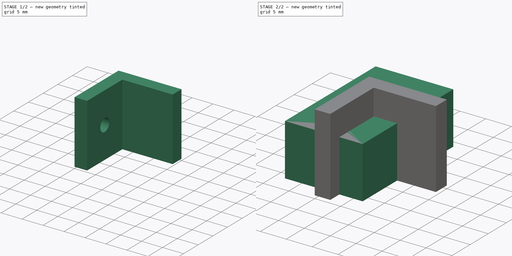
[diagram: build sequence overview — one tinted view per stage of 2, left to right]
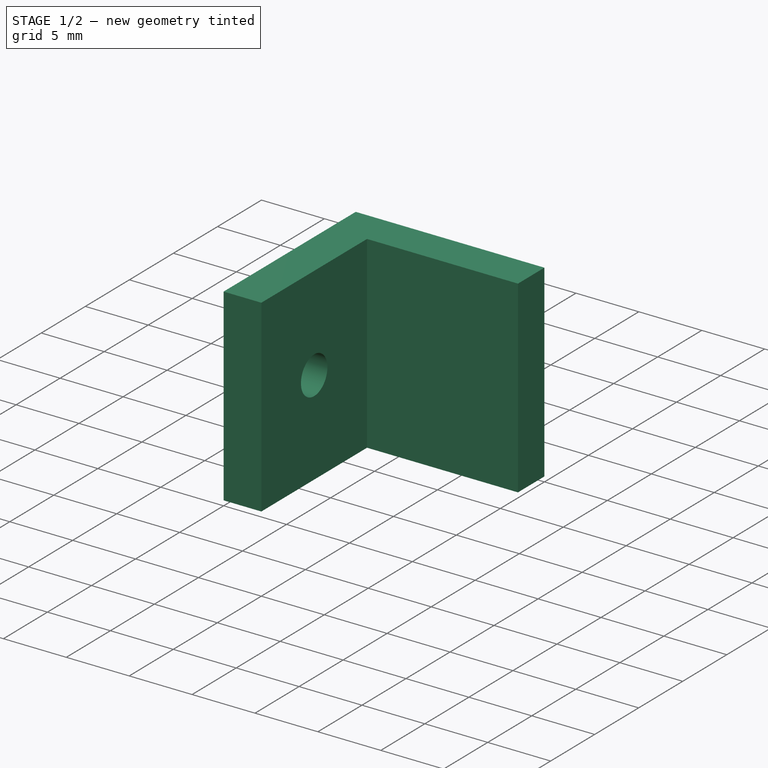
[diagram: stage 1 of 2 — iso view after this stage's code; geometry added in this stage tinted green]
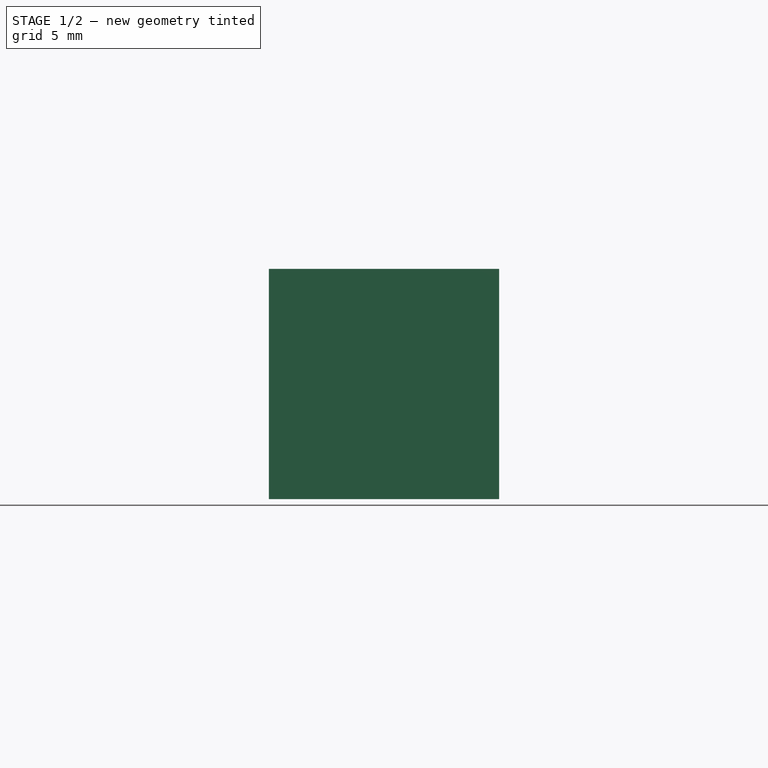
[diagram: stage 1 of 2 — front view after this stage's code; geometry added in this stage tinted green]
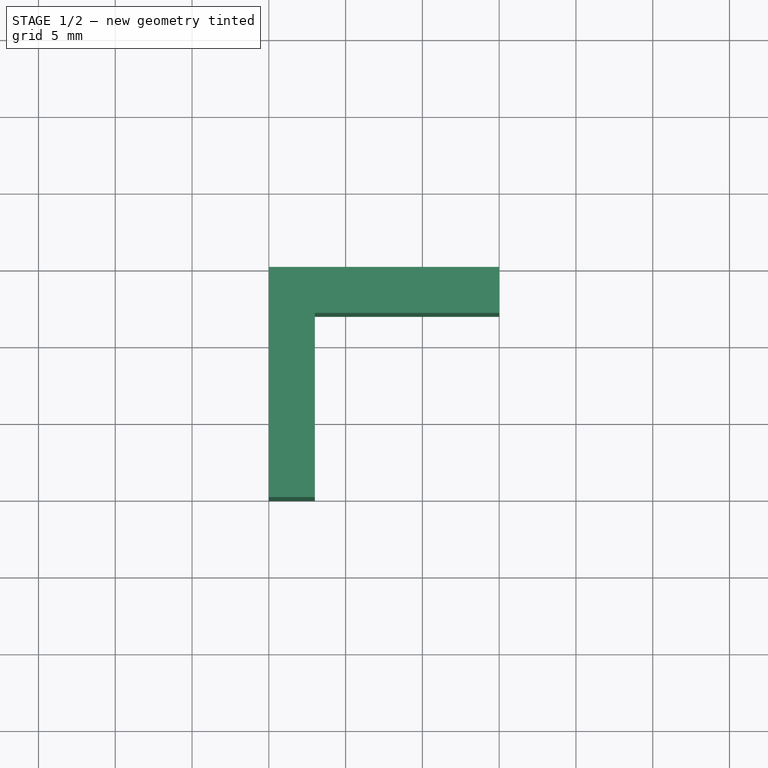
[diagram: stage 1 of 2 — top view after this stage's code; geometry added in this stage tinted green]
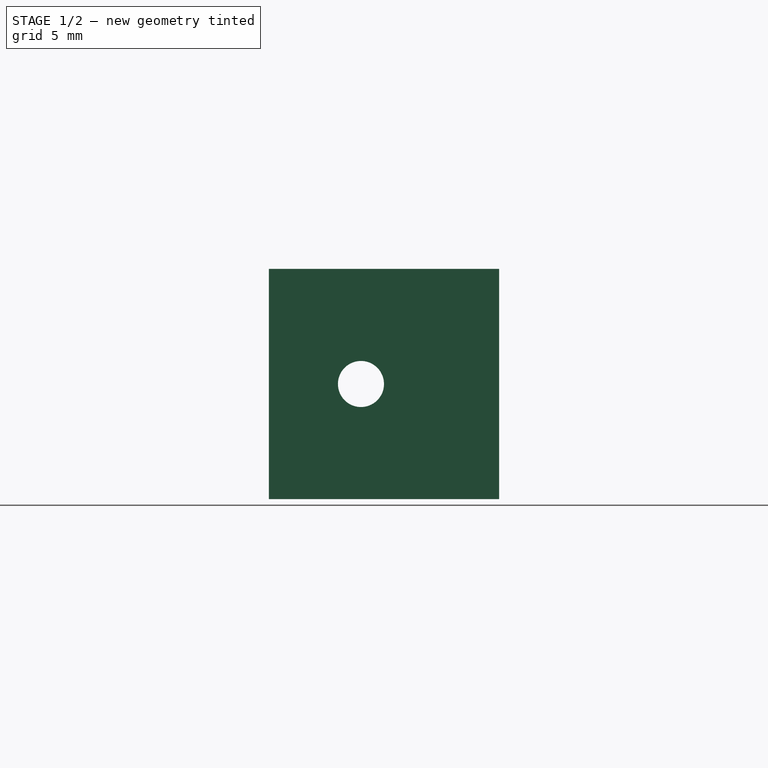
[diagram: stage 1 of 2 — right view after this stage's code; geometry added in this stage tinted green]
FCSTD DOCUMENT  (FreeCAD 2024.2R37179 (Git))
Label: Blok
License: All rights reserved
LicenseURL: https://en.wikipedia.org/wiki/All_rights_reserved
objects: Sketcher::SketchObject×4, PartDesign::Pad×2, PartDesign::Body×2, PartDesign::Pocket×1
note: 12 computed .brp shape members not serialized (recipe doc carries the construction recipe); baked Part::Feature solids carry a one-line shape summary decoded from their .brp

FEATURE [PartDesign::Body] Body
  Group = -> [Sketch,Pad]
  Origin = -> Origin
  Tip = -> Pad
FEATURE [Sketcher::SketchObject] Sketch001
  AttachmentSupport = -> [XY_Plane001]
  FullyConstrained = true
  MapMode = 5
  sketch-geometry (6):
    g0: LineSegment StartX=0 StartY=0 StartZ=0 EndX=0 EndY=-15 EndZ=0
    g1: LineSegment StartX=0 StartY=-15 StartZ=0 EndX=3 EndY=-15 EndZ=0
    g2: LineSegment StartX=3 StartY=-15 StartZ=0 EndX=3 EndY=-3 EndZ=0
    g3: LineSegment StartX=3 StartY=-3 StartZ=0 EndX=15 EndY=-3 EndZ=0
    g4: LineSegment StartX=15 StartY=-3 StartZ=0 EndX=15 EndY=0 EndZ=0
    g5: LineSegment StartX=15 StartY=0 StartZ=0 EndX=0 EndY=0 EndZ=0
  constraints (17):
    c: Coincident(g-1,g0)
    c: PointOnObject(g0,g-2)
    c: Coincident(g0,g1)
    c: Coincident(g1,g2)
    c: Coincident(g2,g3)
    c: Horizontal(g3)
    c: Coincident(g3,g4)
    c: PointOnObject(g4,g-1)
    c: Coincident(g4,g5)
    c: Coincident(g5,g0)
    c: Vertical(g2)
    c: Horizontal(g1)
    c: Vertical(g4)
    c: DistanceX(g5,g5) = 15
    c: DistanceY(g0,g0) = 15
    c: DistanceX(g1,g1) = 3
    c: DistanceY(g4,g4) = 3
FEATURE [PartDesign::Pad] Pad001
  Direction = (0,0,1)
  Length = 15
  Length2 = 10
  Profile = -> Sketch001
  ReferenceAxis = -> Sketch001 [N_Axis]
  Refine = true
  Suppressed = false
  Type = 0
FEATURE [Sketcher::SketchObject] Sketch002
  AttachmentSupport = -> [Pad001]
  FullyConstrained = true
  MapMode = 5
  Placement = pos=(3,0,0) rot=(0.57735,0.57735,0.57735;2.0944rad)
FEATURE [Sketcher::SketchObject] Sketch003
  AttachmentSupport = -> [Pad001]
  ExternalGeometry = -> [Pad001]
  FullyConstrained = true
  MapMode = 5
  Placement = pos=(3,0,0) rot=(0.57735,0.57735,0.57735;2.0944rad)
  sketch-geometry (1):
    g0: Circle CenterX=-9 CenterY=7.5 CenterZ=0 NormalX=0 NormalY=0 NormalZ=1 AngleXU=0 Radius=1.5
  constraints (2):
    c: Diameter(g0) = 3
    c: Symmetric(g-4,g-3,g0)
FEATURE [PartDesign::Pocket] Pocket
  BaseFeature = -> Pad001
  Direction = (-1,0,0)
  Length = 5
  Length2 = 5
  Profile = -> Sketch003
  ReferenceAxis = -> Sketch003 [N_Axis]
  Refine = true
  Suppressed = false
  Type = 1
FEATURE [PartDesign::Body] Body001
  Group = -> [Sketch001,Pad001,Sketch002,Sketch003,Pocket]
  Origin = -> Origin001
  Tip = -> Pocket
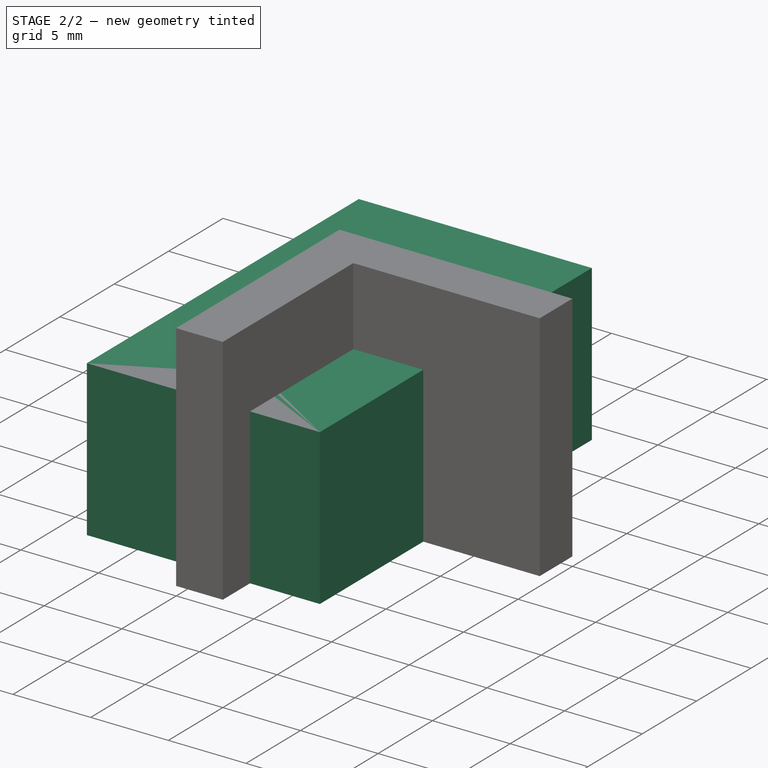
[diagram: stage 2 of 2 — iso view after this stage's code; geometry added in this stage tinted green]
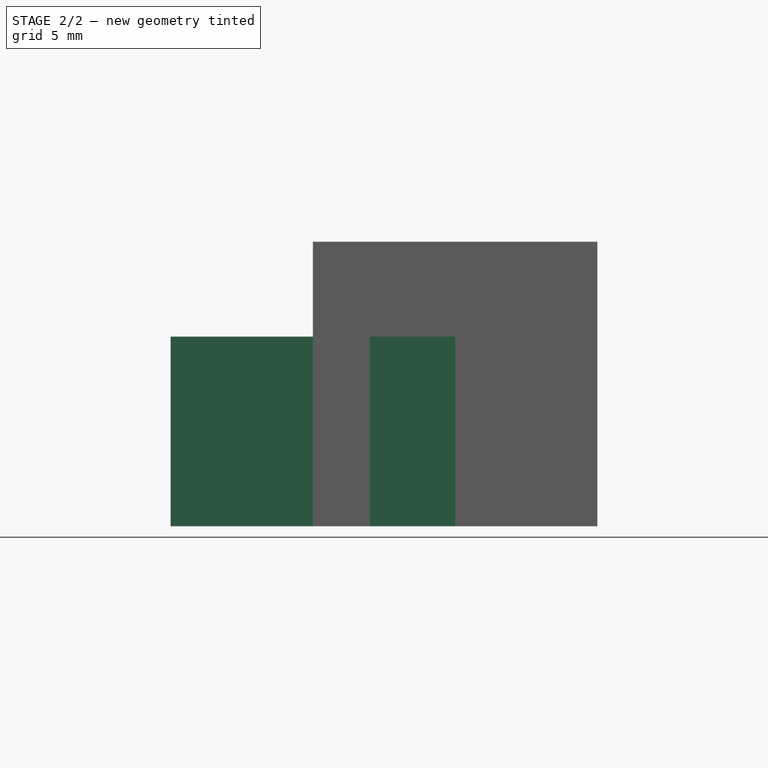
[diagram: stage 2 of 2 — front view after this stage's code; geometry added in this stage tinted green]
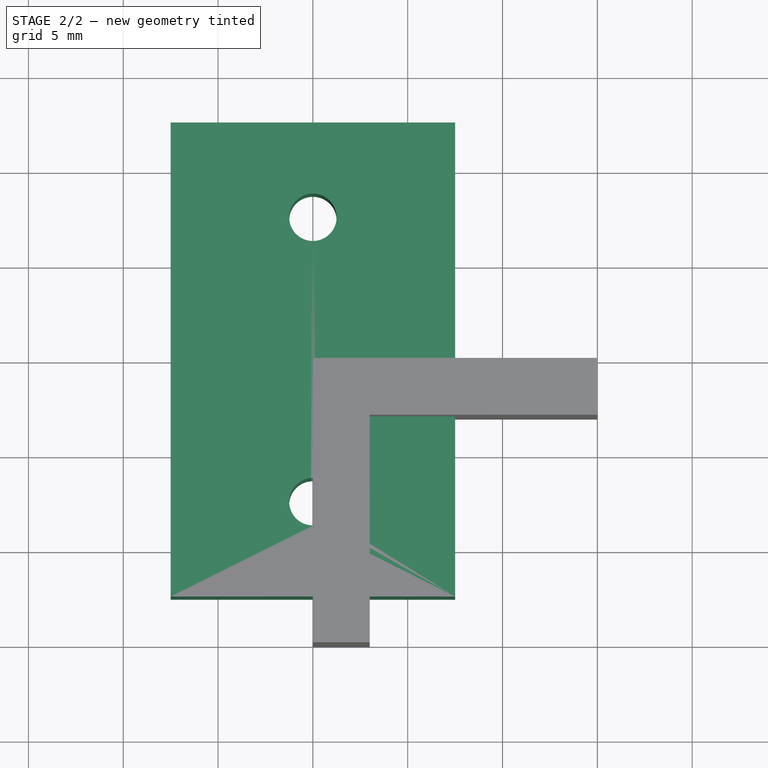
[diagram: stage 2 of 2 — top view after this stage's code; geometry added in this stage tinted green]
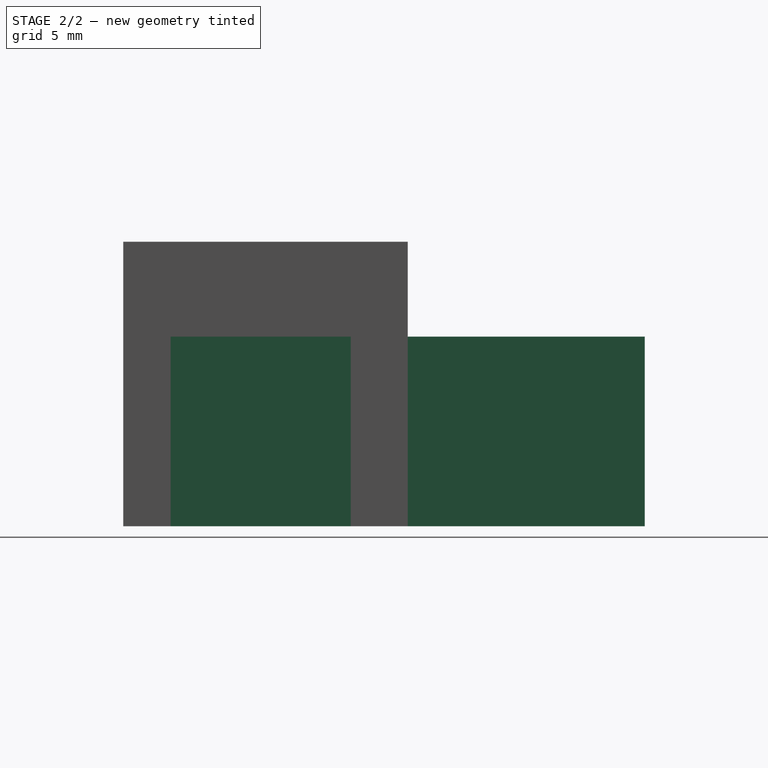
[diagram: stage 2 of 2 — right view after this stage's code; geometry added in this stage tinted green]
FEATURE [Sketcher::SketchObject] Sketch
  AttachmentSupport = -> [XY_Plane]
  FullyConstrained = true
  MapMode = 5
  sketch-geometry (7):
    g0: LineSegment StartX=-7.5 StartY=-12.5 StartZ=0 EndX=7.5 EndY=-12.5 EndZ=0
    g1: LineSegment StartX=7.5 StartY=-12.5 StartZ=0 EndX=7.5 EndY=12.5 EndZ=0
    g2: LineSegment StartX=7.5 StartY=12.5 StartZ=0 EndX=-7.5 EndY=12.5 EndZ=0
    g3: LineSegment StartX=-7.5 StartY=12.5 StartZ=0 EndX=-7.5 EndY=-12.5 EndZ=0
    g4: GeomPoint X=0 Y=0 Z=0
    g5: Circle CenterX=0 CenterY=7.5 CenterZ=0 NormalX=0 NormalY=0 NormalZ=1 AngleXU=0 Radius=1.25
    g6: Circle CenterX=0 CenterY=-7.5 CenterZ=0 NormalX=0 NormalY=0 NormalZ=1 AngleXU=0 Radius=1.25
  constraints (18):
    c: Coincident(g0,g1)
    c: Coincident(g1,g2)
    c: Coincident(g2,g3)
    c: Coincident(g3,g0)
    c: Horizontal(g0)
    c: Horizontal(g2)
    c: Vertical(g1)
    c: Vertical(g3)
    c: Symmetric(g2,g0,g4)
    c: Distance(g1,g3) = 15
    c: Distance(g0,g2) = 25
    c: Coincident(g4,g-1)
    c: PointOnObject(g5,g-2)
    c: PointOnObject(g6,g-2)
    c: Equal(g5,g6)
    c: Diameter(g5) = 2.5
    c: Distance(g4,g5) = 7.5
    c: Distance(g4,g6) = 7.5
FEATURE [PartDesign::Pad] Pad
  Direction = (0,0,1)
  Length = 10
  Length2 = 10
  Profile = -> Sketch
  ReferenceAxis = -> Sketch [N_Axis]
  Refine = true
  Suppressed = false
  Type = 0
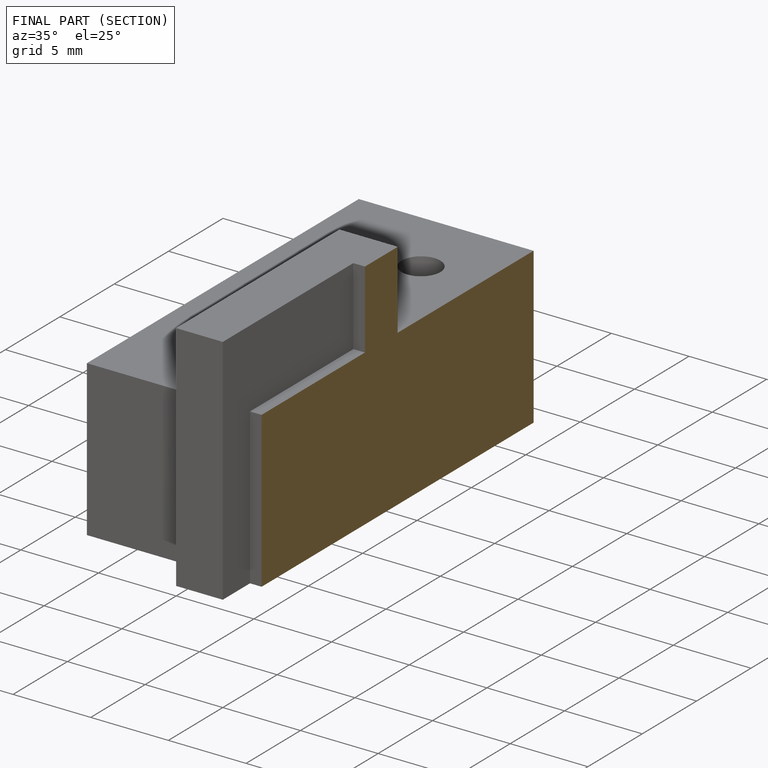
[diagram: finished part — half-section view (interior)]
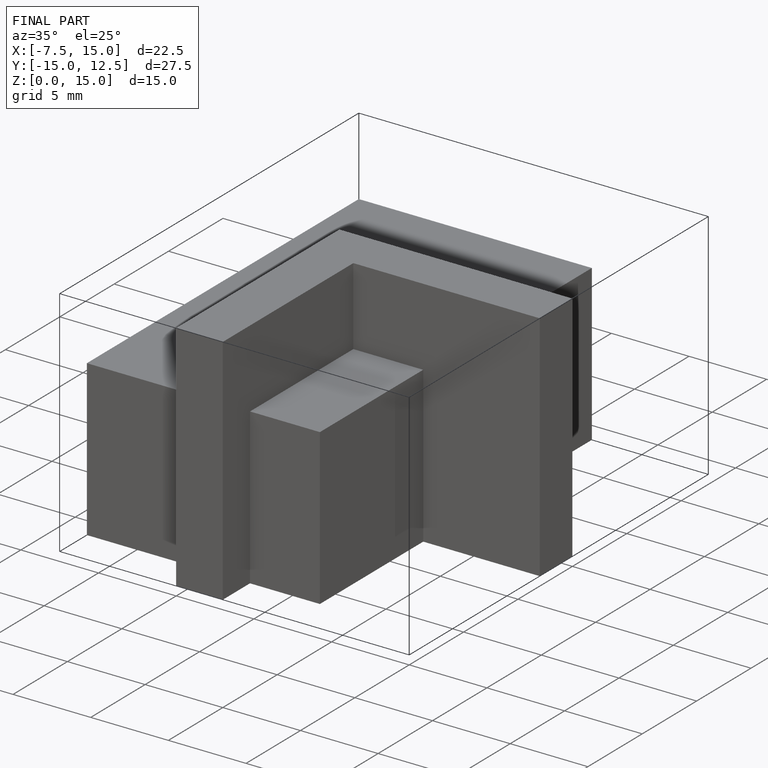
[diagram: finished part — iso view with bounding-box wireframe]
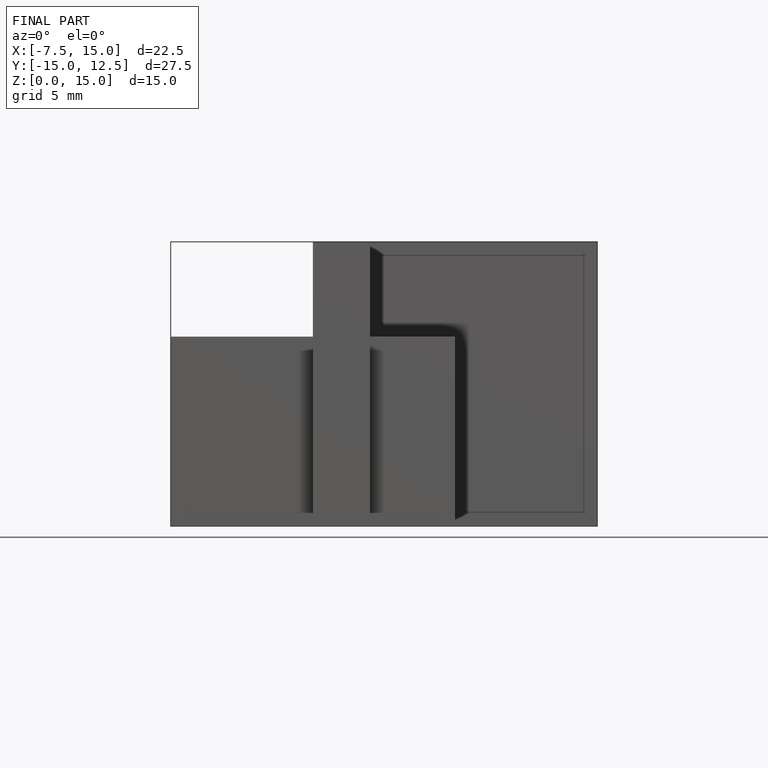
[diagram: finished part — front view with bounding-box wireframe]
